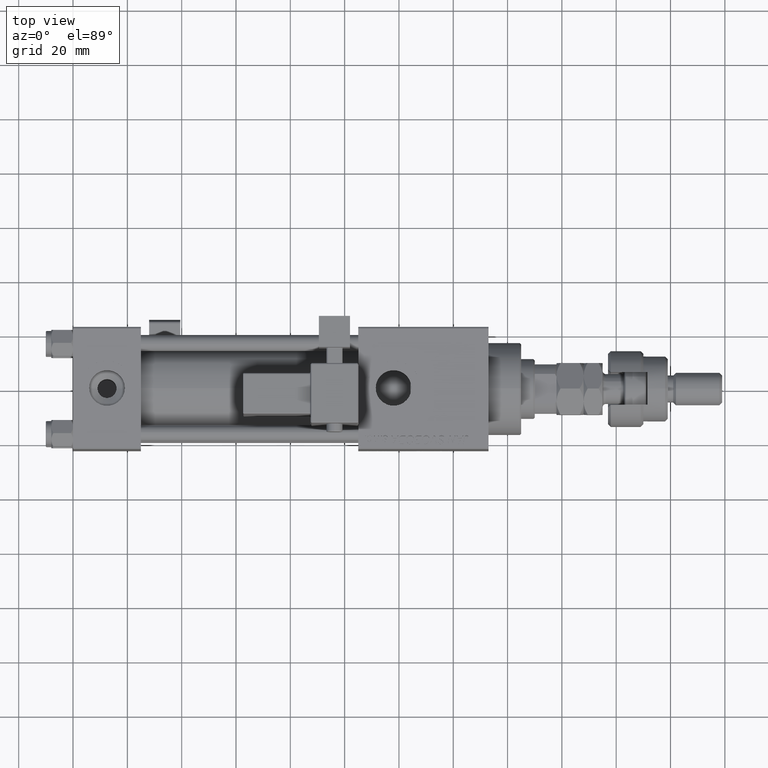
[diagram: clean part render]
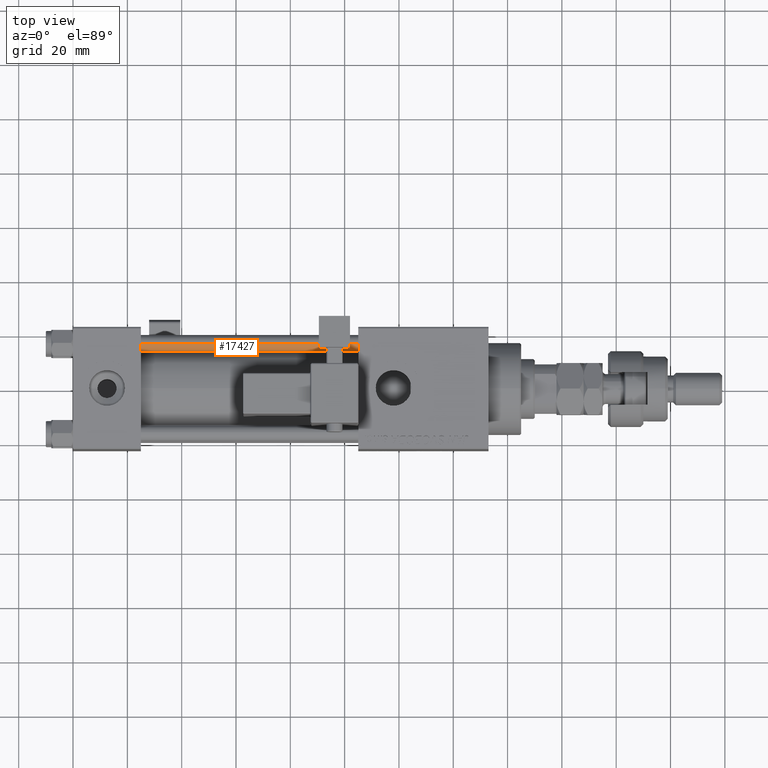
[diagram: same view with one face highlighted and labeled with its STEP entity id]
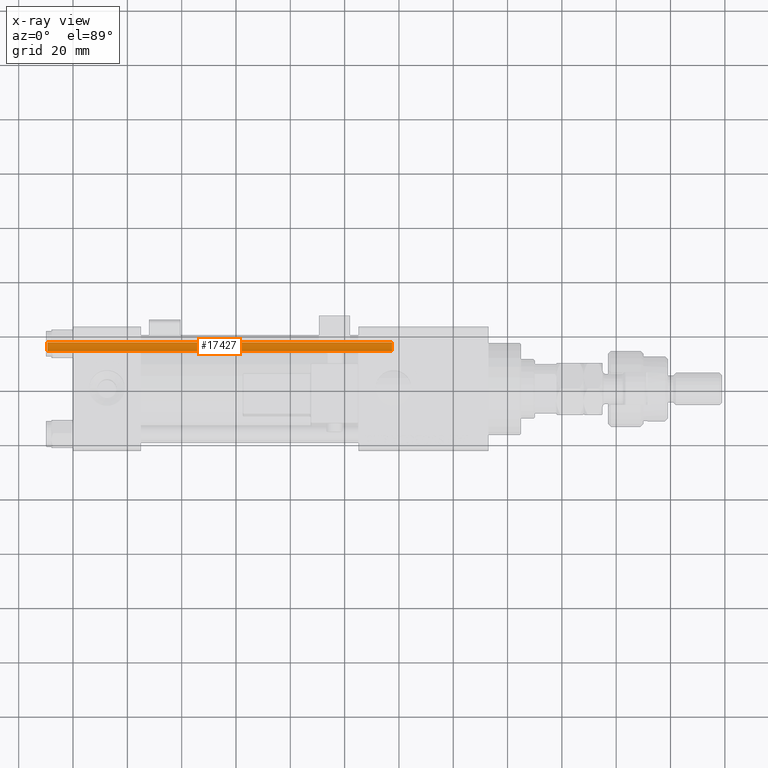
[diagram: x-ray of the same camera — body ghosted, the highlighted face saturated]
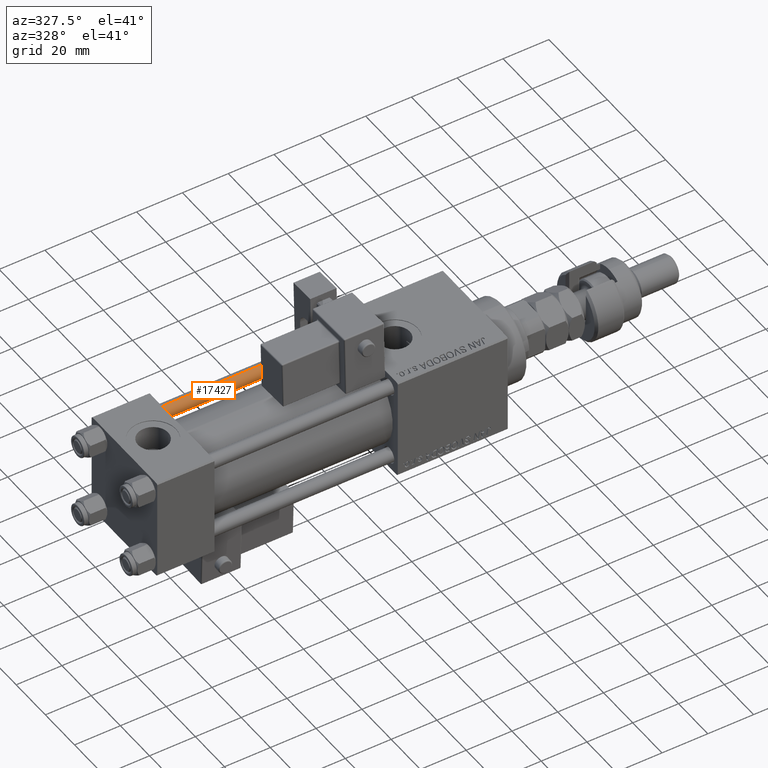
[diagram: same view with one face highlighted and labeled with its STEP entity id]
A machine part, top view. The second image highlights one B-rep face of the part: STEP entity #17427.
The next image is the same camera in x-ray: the body ghosted, the highlighted face saturated — about 0% of this face is hidden behind the body in this view.
A second angle (auxiliary view) of the same face is appended — the face is thin or edge-on in the first view.
In plain terms, the highlighted cylindrical surface (edge-blend (fillet) strip) has radius 3 mm, axis along (-1, 0, 0).
Its self-contained STEP definition (entity closure, byte-faithful):
#936 = AXIS2_PLACEMENT_3D ( 'NONE', #24884, #6036, #10959 ) ;
#3407 = VERTEX_POINT ( 'NONE', #40810 ) ;
#6036 = DIRECTION ( 'NONE',  ( -0.000000000000000000, -0.000000000000000000, 1.000000000000000000 ) ) ;
#7396 = VECTOR ( 'NONE', #39505, 1000.000000000000000 ) ;
#7504 = ORIENTED_EDGE ( 'NONE', *, *, #46174, .T. ) ;
#9592 = CARTESIAN_POINT ( 'NONE',  ( 3.000000000000000444, 3.673940397442060361E-16, 0.5000000000000281997 ) ) ;
#10959 = DIRECTION ( 'NONE',  ( 1.000000000000000000, 0.000000000000000000, 0.000000000000000000 ) ) ;
#13044 = CYLINDRICAL_SURFACE ( 'NONE', #52513, 3.000000000000000444 ) ;
#15074 = DIRECTION ( 'NONE',  ( 0.000000000000000000, 0.000000000000000000, -1.000000000000000000 ) ) ;
#15378 = VERTEX_POINT ( 'NONE', #9592 ) ;
#15893 = ORIENTED_EDGE ( 'NONE', *, *, #23422, .T. ) ;
#17427 = ADVANCED_FACE ( 'NONE', ( #18534 ), #13044, .T. ) ;
#18534 = FACE_OUTER_BOUND ( 'NONE', #18962, .T. ) ;
#18962 = EDGE_LOOP ( 'NONE', ( #29661, #15893, #50513, #7504 ) ) ;
#20157 = AXIS2_PLACEMENT_3D ( 'NONE', #28446, #15074, #27856 ) ;
#21317 = CIRCLE ( 'NONE', #936, 3.000000000000000444 ) ;
#22062 = CARTESIAN_POINT ( 'NONE',  ( -3.000000000000000444, 0.000000000000000000, 128.0000000000000000 ) ) ;
#22342 = LINE ( 'NONE', #22062, #7396 ) ;
#23422 = EDGE_CURVE ( 'NONE', #44553, #37145, #35965, .T. ) ;
#23742 = LINE ( 'NONE', #41462, #42664 ) ;
#24884 = CARTESIAN_POINT ( 'NONE',  ( 0.000000000000000000, 0.000000000000000000, 0.5000000000000281997 ) ) ;
#27731 = CARTESIAN_POINT ( 'NONE',  ( 3.000000000000000444, 3.673940397442060361E-16, 127.4999999999999716 ) ) ;
#27856 = DIRECTION ( 'NONE',  ( 1.000000000000000000, 0.000000000000000000, 0.000000000000000000 ) ) ;
#27910 = EDGE_CURVE ( 'NONE', #37145, #3407, #22342, .T. ) ;
#28446 = CARTESIAN_POINT ( 'NONE',  ( 0.000000000000000000, 0.000000000000000000, 127.4999999999999716 ) ) ;
#29661 = ORIENTED_EDGE ( 'NONE', *, *, #31653, .F. ) ;
#30757 = CARTESIAN_POINT ( 'NONE',  ( 0.000000000000000000, 0.000000000000000000, 128.0000000000000000 ) ) ;
#31653 = EDGE_CURVE ( 'NONE', #44553, #15378, #23742, .T. ) ;
#35965 = CIRCLE ( 'NONE', #20157, 3.000000000000000444 ) ;
#36264 = DIRECTION ( 'NONE',  ( -1.000000000000000000, 0.000000000000000000, 0.000000000000000000 ) ) ;
#37145 = VERTEX_POINT ( 'NONE', #53389 ) ;
#39505 = DIRECTION ( 'NONE',  ( -0.000000000000000000, -0.000000000000000000, -1.000000000000000000 ) ) ;
#40810 = CARTESIAN_POINT ( 'NONE',  ( -3.000000000000000444, 0.000000000000000000, 0.5000000000000281997 ) ) ;
#41462 = CARTESIAN_POINT ( 'NONE',  ( 3.000000000000000444, 3.673940397442060361E-16, 128.0000000000000000 ) ) ;
#42664 = VECTOR ( 'NONE', #54839, 1000.000000000000000 ) ;
#44553 = VERTEX_POINT ( 'NONE', #27731 ) ;
#46174 = EDGE_CURVE ( 'NONE', #3407, #15378, #21317, .T. ) ;
#50513 = ORIENTED_EDGE ( 'NONE', *, *, #27910, .T. ) ;
#52513 = AXIS2_PLACEMENT_3D ( 'NONE', #30757, #54420, #36264 ) ;
#53389 = CARTESIAN_POINT ( 'NONE',  ( -3.000000000000000444, 0.000000000000000000, 127.4999999999999716 ) ) ;
#54420 = DIRECTION ( 'NONE',  ( -0.000000000000000000, -0.000000000000000000, -1.000000000000000000 ) ) ;
#54839 = DIRECTION ( 'NONE',  ( -0.000000000000000000, -0.000000000000000000, -1.000000000000000000 ) ) ;